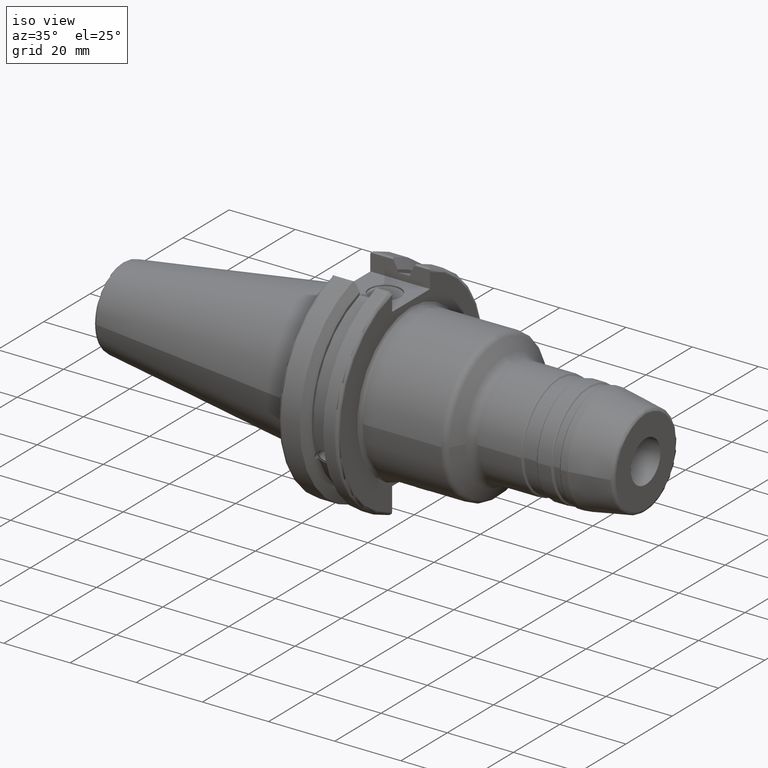
[diagram: clean part render]
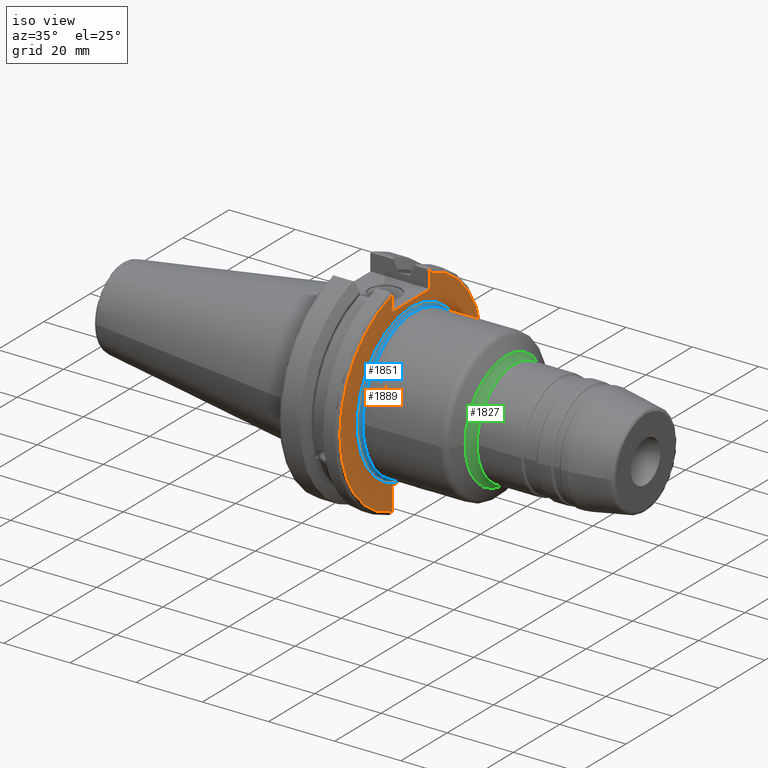
[diagram: same view with three faces highlighted in distinct colors, each labeled with its STEP entity id]
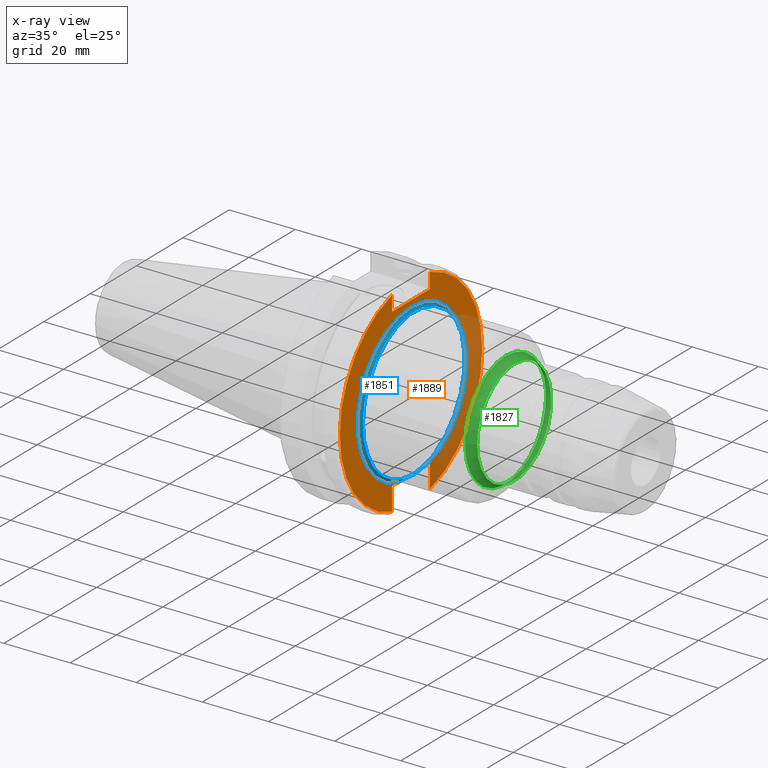
[diagram: x-ray of the same camera — body ghosted, the three highlighted faces saturated]
A machine part, iso view with three faces highlighted in distinct colors.
The next image is the same camera in x-ray (body ghosted, the three faces saturated) — at least one of them is partly hidden behind the body in this view.
Their STEP definitions:

[orange] entity #1889 — the highlighted planar face has unit normal (1, 0, 0).
#111=PLANE('',#2136);
#213=LINE('',#3473,#306);
#214=LINE('',#3474,#307);
#215=LINE('',#3476,#308);
#216=LINE('',#3478,#309);
#217=LINE('',#3480,#310);
#218=LINE('',#3484,#311);
#219=LINE('',#3485,#312);
#306=VECTOR('',#2620,10.);
#307=VECTOR('',#2621,10.);
#308=VECTOR('',#2622,10.);
#309=VECTOR('',#2623,10.);
#310=VECTOR('',#2624,10.);
#311=VECTOR('',#2627,10.);
#312=VECTOR('',#2628,10.);
#435=FACE_OUTER_BOUND('',#550,.T.);
#550=EDGE_LOOP('',(#1565,#1566,#1567,#1568,#1569,#1570,#1571,#1572,#1573,
#1574));
#662=CIRCLE('',#2043,23.25);
#698=CIRCLE('',#2134,30.75);
#700=CIRCLE('',#2137,30.75);
#782=VERTEX_POINT('',#2967);
#783=VERTEX_POINT('',#2974);
#863=VERTEX_POINT('',#3436);
#864=VERTEX_POINT('',#3443);
#868=VERTEX_POINT('',#3472);
#869=VERTEX_POINT('',#3475);
#870=VERTEX_POINT('',#3477);
#871=VERTEX_POINT('',#3479);
#872=VERTEX_POINT('',#3481);
#873=VERTEX_POINT('',#3483);
#1001=EDGE_CURVE('',#782,#783,#662,.T.);
#1114=EDGE_CURVE('',#863,#864,#698,.T.);
#1119=EDGE_CURVE('',#782,#868,#213,.T.);
#1120=EDGE_CURVE('',#868,#864,#214,.T.);
#1121=EDGE_CURVE('',#863,#869,#215,.T.);
#1122=EDGE_CURVE('',#869,#870,#216,.T.);
#1123=EDGE_CURVE('',#870,#871,#217,.T.);
#1124=EDGE_CURVE('',#872,#871,#700,.T.);
#1125=EDGE_CURVE('',#872,#873,#218,.T.);
#1126=EDGE_CURVE('',#873,#783,#219,.T.);
#1565=ORIENTED_EDGE('',*,*,#1001,.F.);
#1566=ORIENTED_EDGE('',*,*,#1119,.T.);
#1567=ORIENTED_EDGE('',*,*,#1120,.T.);
#1568=ORIENTED_EDGE('',*,*,#1114,.F.);
#1569=ORIENTED_EDGE('',*,*,#1121,.T.);
#1570=ORIENTED_EDGE('',*,*,#1122,.T.);
#1571=ORIENTED_EDGE('',*,*,#1123,.T.);
#1572=ORIENTED_EDGE('',*,*,#1124,.F.);
#1573=ORIENTED_EDGE('',*,*,#1125,.T.);
#1574=ORIENTED_EDGE('',*,*,#1126,.T.);
#1889=ADVANCED_FACE('',(#435),#111,.T.);
#2043=AXIS2_PLACEMENT_3D('',#2975,#2399,#2400);
#2134=AXIS2_PLACEMENT_3D('',#3444,#2614,#2615);
#2136=AXIS2_PLACEMENT_3D('',#3471,#2618,#2619);
#2137=AXIS2_PLACEMENT_3D('',#3482,#2625,#2626);
#2399=DIRECTION('center_axis',(1.,0.,0.));
#2400=DIRECTION('ref_axis',(0.,-1.,-1.22464679914735E-16));
#2614=DIRECTION('center_axis',(-1.,0.,0.));
#2615=DIRECTION('ref_axis',(0.,1.,-6.12323399573677E-17));
#2618=DIRECTION('center_axis',(1.,0.,0.));
#2619=DIRECTION('ref_axis',(0.,0.,-1.));
#2620=DIRECTION('',(0.,1.,0.));
#2621=DIRECTION('',(0.,0.,-1.));
#2622=DIRECTION('',(0.,0.,-1.));
#2623=DIRECTION('',(0.,-1.,0.));
#2624=DIRECTION('',(0.,0.,1.));
#2625=DIRECTION('center_axis',(-1.,0.,0.));
#2626=DIRECTION('ref_axis',(0.,-1.,1.60812264967664E-16));
#2627=DIRECTION('',(0.,0.,1.));
#2628=DIRECTION('',(0.,1.,0.));
#2967=CARTESIAN_POINT('',(19.05,5.45916660306312,-22.6));
#2974=CARTESIAN_POINT('',(19.05,-5.45916660306312,-22.6));
#2975=CARTESIAN_POINT('Origin',(19.05,0.,0.));
#3436=CARTESIAN_POINT('',(19.05,8.19,29.6392712461019));
#3443=CARTESIAN_POINT('',(19.05,8.19,-29.6392712461019));
#3444=CARTESIAN_POINT('Origin',(19.05,0.,0.));
#3471=CARTESIAN_POINT('Origin',(19.05,0.,0.));
#3472=CARTESIAN_POINT('',(19.05,8.19,-22.6));
#3473=CARTESIAN_POINT('',(19.05,-2.77555756156289E-16,-22.6));
#3474=CARTESIAN_POINT('',(19.05,8.19,-11.3));
#3475=CARTESIAN_POINT('',(19.05,8.19,25.));
#3476=CARTESIAN_POINT('',(19.05,8.19,12.5));
#3477=CARTESIAN_POINT('',(19.05,-8.19,25.));
#3478=CARTESIAN_POINT('',(19.05,0.,25.));
#3479=CARTESIAN_POINT('',(19.05,-8.19,29.6392712461019));
#3480=CARTESIAN_POINT('',(19.05,-8.19,12.5));
#3481=CARTESIAN_POINT('',(19.05,-8.19,-29.6392712461019));
#3482=CARTESIAN_POINT('Origin',(19.05,0.,0.));
#3483=CARTESIAN_POINT('',(19.05,-8.19,-22.6));
#3484=CARTESIAN_POINT('',(19.05,-8.19,-11.3));
#3485=CARTESIAN_POINT('',(19.05,-2.77555756156289E-16,-22.6));

[blue] entity #1851 — the highlighted toroidal blend (fillet) surface has major radius 23.25 mm and minor (blend) radius 1 mm.
#51=B_SPLINE_CURVE_WITH_KNOTS('',3,(#2968,#2969,#2970,#2971,#2972,#2973),
 .UNSPECIFIED.,.F.,.F.,(4,2,4),(1.72596271882624,2.07497455326111,2.23850423752741),
 .UNSPECIFIED.);
#52=B_SPLINE_CURVE_WITH_KNOTS('',3,(#2976,#2977,#2978,#2979,#2980,#2981),
 .UNSPECIFIED.,.F.,.F.,(4,2,4),(1.21342120012506,1.37695088439136,1.72596271882624),
 .UNSPECIFIED.);
#397=FACE_OUTER_BOUND('',#504,.T.);
#504=EDGE_LOOP('',(#1359,#1360,#1361,#1362,#1363,#1364,#1365));
#612=CIRCLE('',#1973,22.25);
#613=CIRCLE('',#1974,22.25);
#661=CIRCLE('',#2042,1.);
#662=CIRCLE('',#2043,23.25);
#741=VERTEX_POINT('',#2846);
#742=VERTEX_POINT('',#2848);
#781=VERTEX_POINT('',#2965);
#782=VERTEX_POINT('',#2967);
#783=VERTEX_POINT('',#2974);
#941=EDGE_CURVE('',#742,#741,#612,.T.);
#942=EDGE_CURVE('',#741,#742,#613,.T.);
#999=EDGE_CURVE('',#742,#781,#661,.T.);
#1000=EDGE_CURVE('',#782,#781,#51,.F.);
#1001=EDGE_CURVE('',#782,#783,#662,.T.);
#1002=EDGE_CURVE('',#781,#783,#52,.F.);
#1359=ORIENTED_EDGE('',*,*,#942,.T.);
#1360=ORIENTED_EDGE('',*,*,#999,.T.);
#1361=ORIENTED_EDGE('',*,*,#1000,.F.);
#1362=ORIENTED_EDGE('',*,*,#1001,.T.);
#1363=ORIENTED_EDGE('',*,*,#1002,.F.);
#1364=ORIENTED_EDGE('',*,*,#999,.F.);
#1365=ORIENTED_EDGE('',*,*,#941,.T.);
#1819=TOROIDAL_SURFACE('',#2041,23.25,1.);
#1851=ADVANCED_FACE('',(#397),#1819,.F.);
#1973=AXIS2_PLACEMENT_3D('',#2849,#2250,#2251);
#1974=AXIS2_PLACEMENT_3D('',#2850,#2252,#2253);
#2041=AXIS2_PLACEMENT_3D('',#2964,#2395,#2396);
#2042=AXIS2_PLACEMENT_3D('',#2966,#2397,#2398);
#2043=AXIS2_PLACEMENT_3D('',#2975,#2399,#2400);
#2250=DIRECTION('center_axis',(-1.,0.,0.));
#2251=DIRECTION('ref_axis',(0.,-1.,-1.22464679914735E-16));
#2252=DIRECTION('center_axis',(-1.,0.,0.));
#2253=DIRECTION('ref_axis',(0.,-1.,-1.22464679914735E-16));
#2395=DIRECTION('center_axis',(-1.,0.,0.));
#2396=DIRECTION('ref_axis',(0.,0.,1.));
#2397=DIRECTION('center_axis',(0.,-1.,1.22464679914735E-16));
#2398=DIRECTION('ref_axis',(0.,-1.22464679914735E-16,-1.));
#2399=DIRECTION('center_axis',(1.,0.,0.));
#2400=DIRECTION('ref_axis',(0.,-1.,-1.22464679914735E-16));
#2846=CARTESIAN_POINT('',(20.05,-22.25,-2.72483912810286E-15));
#2848=CARTESIAN_POINT('',(20.05,-2.72483912810286E-15,-22.25));
#2849=CARTESIAN_POINT('Origin',(20.05,0.,0.));
#2850=CARTESIAN_POINT('Origin',(20.05,0.,0.));
#2964=CARTESIAN_POINT('Origin',(20.05,0.,0.));
#2965=CARTESIAN_POINT('',(19.2900657923215,-1.52262876111465E-15,-22.6));
#2966=CARTESIAN_POINT('Origin',(20.05,-2.8473038080176E-15,-23.25));
#2967=CARTESIAN_POINT('',(19.05,5.45916660306312,-22.6));
#2968=CARTESIAN_POINT('Ctrl Pts',(19.2900657923215,-4.16333634234434E-16,
-22.6));
#2969=CARTESIAN_POINT('Ctrl Pts',(19.2900657923215,1.16337278144958,-22.6));
#2970=CARTESIAN_POINT('Ctrl Pts',(19.1815308025276,2.55519472595254,-22.6));
#2971=CARTESIAN_POINT('Ctrl Pts',(19.0793249412955,4.26060658551474,-22.6));
#2972=CARTESIAN_POINT('Ctrl Pts',(19.05,4.9140676555088,-22.6));
#2973=CARTESIAN_POINT('Ctrl Pts',(19.05,5.45916660306312,-22.6));
#2974=CARTESIAN_POINT('',(19.05,-5.45916660306312,-22.6));
#2975=CARTESIAN_POINT('Origin',(19.05,0.,0.));
#2976=CARTESIAN_POINT('Ctrl Pts',(19.05,-5.45916660306312,-22.6));
#2977=CARTESIAN_POINT('Ctrl Pts',(19.05,-4.9140676555088,-22.6));
#2978=CARTESIAN_POINT('Ctrl Pts',(19.0793249412955,-4.26060658551474,-22.6));
#2979=CARTESIAN_POINT('Ctrl Pts',(19.1815308025276,-2.55519472595254,-22.6));
#2980=CARTESIAN_POINT('Ctrl Pts',(19.2900657923215,-1.16337278144958,-22.6));
#2981=CARTESIAN_POINT('Ctrl Pts',(19.2900657923215,5.55111512312578E-16,
-22.6));

[green] entity #1827 — the highlighted toroidal blend (fillet) surface has major radius 19 mm and minor (blend) radius 3 mm.
#373=FACE_OUTER_BOUND('',#479,.T.);
#479=EDGE_LOOP('',(#1220,#1221,#1222,#1223,#1224,#1225));
#600=CIRCLE('',#1957,17.5);
#601=CIRCLE('',#1958,3.);
#602=CIRCLE('',#1959,16.);
#603=CIRCLE('',#1960,16.);
#604=CIRCLE('',#1961,17.5);
#731=VERTEX_POINT('',#2818);
#732=VERTEX_POINT('',#2819);
#733=VERTEX_POINT('',#2821);
#734=VERTEX_POINT('',#2823);
#926=EDGE_CURVE('',#731,#732,#600,.T.);
#927=EDGE_CURVE('',#732,#733,#601,.T.);
#928=EDGE_CURVE('',#733,#734,#602,.T.);
#929=EDGE_CURVE('',#734,#733,#603,.T.);
#930=EDGE_CURVE('',#732,#731,#604,.T.);
#1220=ORIENTED_EDGE('',*,*,#926,.T.);
#1221=ORIENTED_EDGE('',*,*,#927,.T.);
#1222=ORIENTED_EDGE('',*,*,#928,.T.);
#1223=ORIENTED_EDGE('',*,*,#929,.T.);
#1224=ORIENTED_EDGE('',*,*,#927,.F.);
#1225=ORIENTED_EDGE('',*,*,#930,.T.);
#1808=TOROIDAL_SURFACE('',#1956,19.,3.);
#1827=ADVANCED_FACE('',(#373),#1808,.F.);
#1956=AXIS2_PLACEMENT_3D('',#2817,#2213,#2214);
#1957=AXIS2_PLACEMENT_3D('',#2820,#2215,#2216);
#1958=AXIS2_PLACEMENT_3D('',#2822,#2217,#2218);
#1959=AXIS2_PLACEMENT_3D('',#2824,#2219,#2220);
#1960=AXIS2_PLACEMENT_3D('',#2825,#2221,#2222);
#1961=AXIS2_PLACEMENT_3D('',#2826,#2223,#2224);
#2213=DIRECTION('center_axis',(1.,0.,0.));
#2214=DIRECTION('ref_axis',(0.,0.,-1.));
#2215=DIRECTION('center_axis',(1.,0.,0.));
#2216=DIRECTION('ref_axis',(0.,-1.,3.06161699786838E-17));
#2217=DIRECTION('center_axis',(0.,-1.,-1.22464679914735E-16));
#2218=DIRECTION('ref_axis',(0.,-1.22464679914735E-16,1.));
#2219=DIRECTION('center_axis',(-1.,0.,0.));
#2220=DIRECTION('ref_axis',(0.,-1.,1.83697019872103E-16));
#2221=DIRECTION('center_axis',(-1.,0.,0.));
#2222=DIRECTION('ref_axis',(0.,-1.,1.83697019872103E-16));
#2223=DIRECTION('center_axis',(1.,0.,0.));
#2224=DIRECTION('ref_axis',(0.,-1.,3.06161699786838E-17));
#2817=CARTESIAN_POINT('Origin',(50.2320508075689,0.,0.));
#2818=CARTESIAN_POINT('',(47.6339745962156,-17.5,-2.14313189850787E-15));
#2819=CARTESIAN_POINT('',(47.6339745962156,-2.14313189850787E-15,17.5));
#2820=CARTESIAN_POINT('Origin',(47.6339745962156,0.,-2.67891487313484E-15));
#2821=CARTESIAN_POINT('',(50.2320508075689,-1.95943487863577E-15,16.));
#2822=CARTESIAN_POINT('Origin',(50.2320508075689,-2.32682891837997E-15,
19.));
#2823=CARTESIAN_POINT('',(50.2320508075689,-16.,-1.95943487863577E-15));
#2824=CARTESIAN_POINT('Origin',(50.2320508075689,0.,0.));
#2825=CARTESIAN_POINT('Origin',(50.2320508075689,0.,0.));
#2826=CARTESIAN_POINT('Origin',(47.6339745962156,0.,-2.67891487313484E-15));